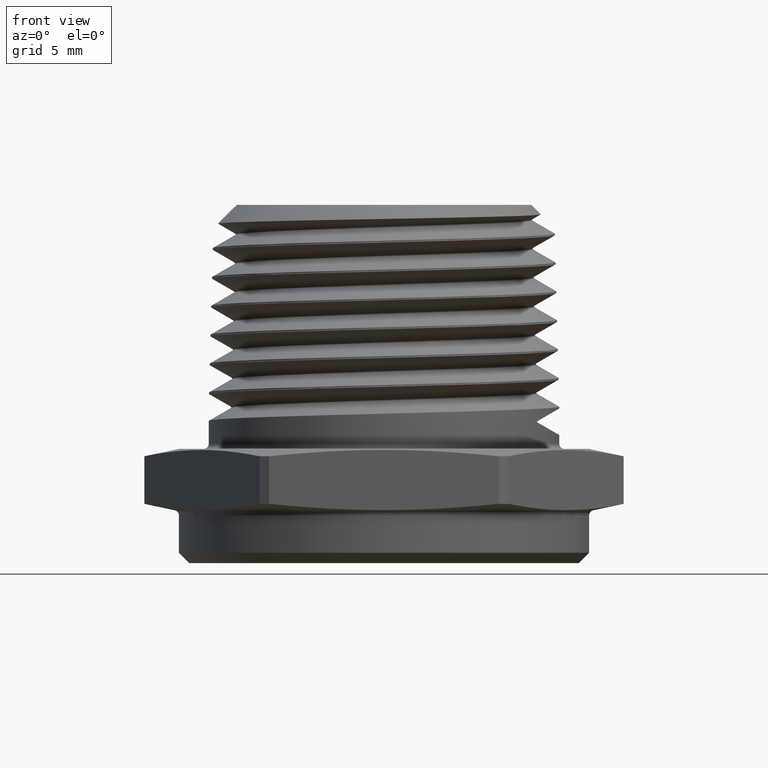
[diagram: clean part render]
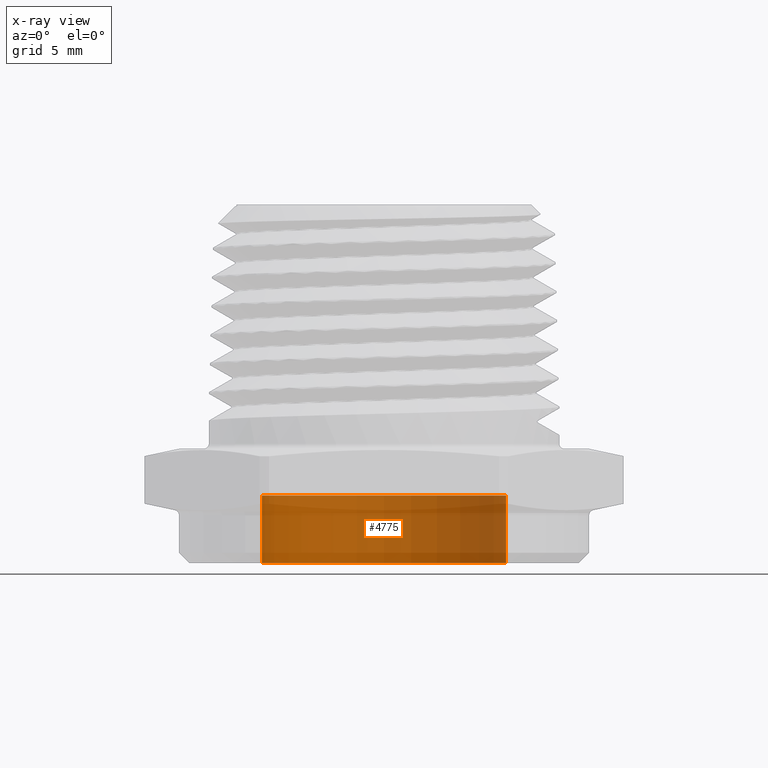
[diagram: x-ray — body ghosted, one internal face saturated and labeled with its STEP entity id]
A machine part, front view, then the same camera in x-ray: the body is ghosted and one INTERNAL B-rep face — a face not visible from any outside direction — is saturated and labeled: STEP entity #4775.
In plain terms, the highlighted cylindrical surface (partial cylindrical patch) has radius 5.969 mm, axis along (0, 0, -1).
Its self-contained STEP definition (entity closure, byte-faithful):
#22 = ORIENTED_EDGE ( 'NONE', *, *, #2805, .T. ) ;
#23 = ORIENTED_EDGE ( 'NONE', *, *, #2804, .T. ) ;
#24 = ORIENTED_EDGE ( 'NONE', *, *, #2806, .F. ) ;
#25 = ORIENTED_EDGE ( 'NONE', *, *, #2807, .F. ) ;
#94 = VERTEX_POINT ( 'NONE', #5116 ) ;
#95 = VERTEX_POINT ( 'NONE', #5063 ) ;
#96 = VERTEX_POINT ( 'NONE', #4937 ) ;
#97 = VERTEX_POINT ( 'NONE', #5138 ) ;
#813 = FACE_OUTER_BOUND ( 'NONE', #1959, .T. ) ;
#828 = CYLINDRICAL_SURFACE ( 'NONE', #4309, 0.2349999999999999900 ) ;
#938 = CARTESIAN_POINT ( 'NONE',  ( 1.224646799147352000E-018, 0.0000000000000000000, 0.02999999999999998800 ) ) ;
#939 = DIRECTION ( 'NONE',  ( 0.0000000000000000000, 0.0000000000000000000, -1.000000000000000000 ) ) ;
#948 = DIRECTION ( 'NONE',  ( -1.000000000000000000, 0.0000000000000000000, 0.0000000000000000000 ) ) ;
#1959 = EDGE_LOOP ( 'NONE', ( #22, #23, #24, #25 ) ) ;
#2804 = EDGE_CURVE ( 'NONE', #95, #97, #4720, .T. ) ;
#2805 = EDGE_CURVE ( 'NONE', #94, #95, #4722, .T. ) ;
#2806 = EDGE_CURVE ( 'NONE', #96, #97, #4726, .T. ) ;
#2807 = EDGE_CURVE ( 'NONE', #94, #96, #4724, .T. ) ;
#2895 = AXIS2_PLACEMENT_3D ( 'NONE', #3794, #3796, #3797 ) ;
#2896 = AXIS2_PLACEMENT_3D ( 'NONE', #3802, #3804, #3806 ) ;
#3785 = DIRECTION ( 'NONE',  ( 0.0000000000000000000, 0.0000000000000000000, -1.000000000000000000 ) ) ;
#3791 = DIRECTION ( 'NONE',  ( 0.0000000000000000000, 0.0000000000000000000, -1.000000000000000000 ) ) ;
#3794 = CARTESIAN_POINT ( 'NONE',  ( 1.224646799147352000E-018, 0.0000000000000000000, 0.02999999999999998800 ) ) ;
#3796 = DIRECTION ( 'NONE',  ( 0.0000000000000000000, 0.0000000000000000000, -1.000000000000000000 ) ) ;
#3797 = DIRECTION ( 'NONE',  ( -1.000000000000000000, 0.0000000000000000000, 0.0000000000000000000 ) ) ;
#3800 = CARTESIAN_POINT ( 'NONE',  ( -0.2349999999999999900, 0.0000000000000000000, 0.02999999999999998800 ) ) ;
#3802 = CARTESIAN_POINT ( 'NONE',  ( 1.224646799147352000E-018, 0.0000000000000000000, -0.1000000000000000100 ) ) ;
#3804 = DIRECTION ( 'NONE',  ( 0.0000000000000000000, 0.0000000000000000000, -1.000000000000000000 ) ) ;
#3806 = DIRECTION ( 'NONE',  ( -1.000000000000000000, 0.0000000000000000000, 0.0000000000000000000 ) ) ;
#4195 = CARTESIAN_POINT ( 'NONE',  ( 0.2349999999999999900, 2.877919977996279200E-017, 0.02999999999999998800 ) ) ;
#4309 = AXIS2_PLACEMENT_3D ( 'NONE', #938, #939, #948 ) ;
#4720 = LINE ( 'NONE', #4195, #4725 ) ;
#4722 = CIRCLE ( 'NONE', #2895, 0.2349999999999999900 ) ;
#4724 = LINE ( 'NONE', #3800, #4729 ) ;
#4725 = VECTOR ( 'NONE', #3785, 39.37007874015748100 ) ;
#4726 = CIRCLE ( 'NONE', #2896, 0.2349999999999999900 ) ;
#4729 = VECTOR ( 'NONE', #3791, 39.37007874015748100 ) ;
#4775 = ADVANCED_FACE ( 'NONE', ( #813 ), #828, .T. ) ;
#4937 = CARTESIAN_POINT ( 'NONE',  ( -0.2349999999999999900, 0.0000000000000000000, -0.1000000000000000100 ) ) ;
#5063 = CARTESIAN_POINT ( 'NONE',  ( 0.2349999999999999900, 2.877919977996279200E-017, 0.02999999999999998800 ) ) ;
#5116 = CARTESIAN_POINT ( 'NONE',  ( -0.2349999999999999900, 0.0000000000000000000, 0.02999999999999998800 ) ) ;
#5138 = CARTESIAN_POINT ( 'NONE',  ( 0.2349999999999999900, 2.877919977996279200E-017, -0.1000000000000000100 ) ) ;